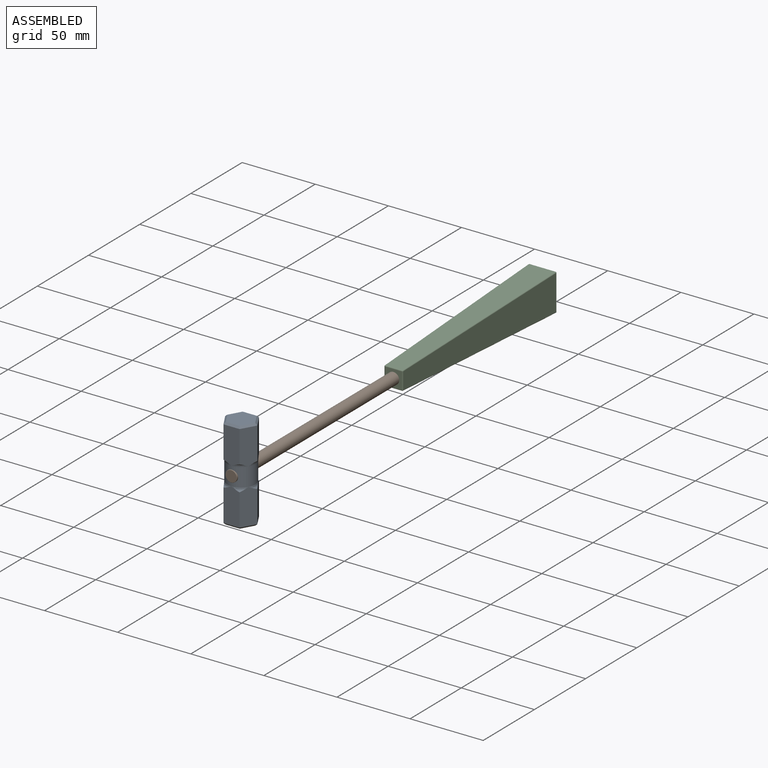
[diagram: assembled view]
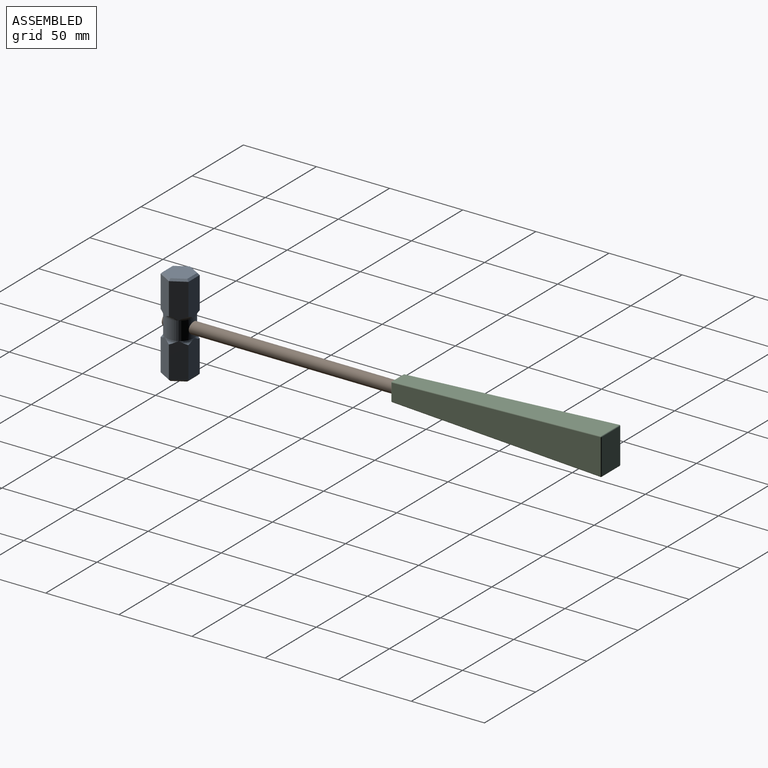
[diagram: assembled view, second angle]
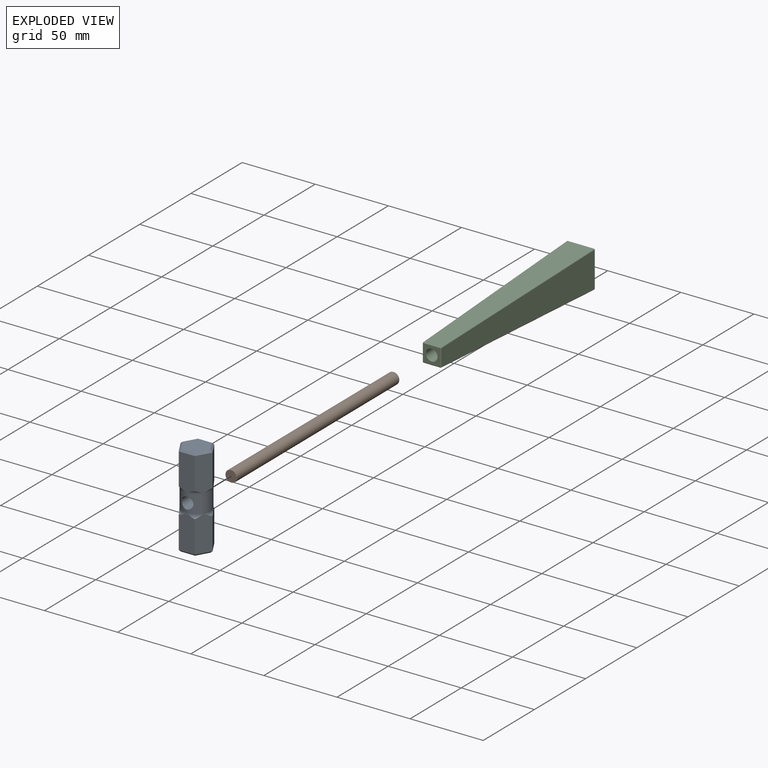
[diagram: exploded view]
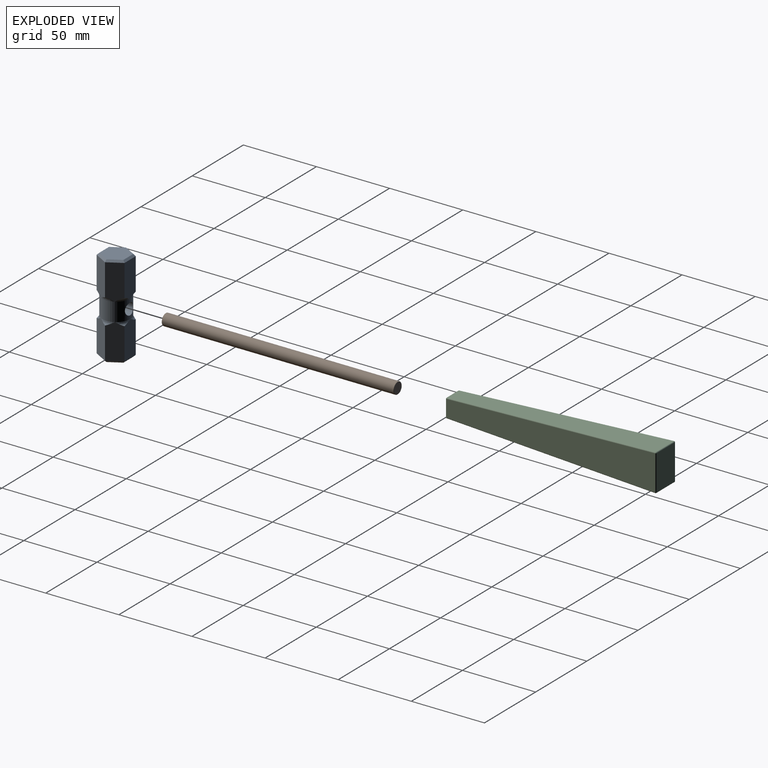
[diagram: exploded view, second angle]
ASSEMBLY  parts=3 mates=2
PART A: 40 faces, bbox 26.1x63.5x26.1 mm
  f0: plane 24.13x9.53mm, normal (0.5,0,0.87), area 251.3mm2, adj f1,f5,f11,f13,f18
  f1: plane 24.13x9.53mm, normal (-0.5,0,0.87), area 251.3mm2, adj f0,f2,f12,f17,f18
  f2: plane 24.13x11mm, normal (-1,0,0), area 251.3mm2, adj f1,f3,f10,f16,f17
  f3: plane 24.13x9.53mm, normal (-0.5,0,-0.87), area 251.3mm2, adj f2,f4,f8,f15,f16
  f4: plane 24.13x9.53mm, normal (0.5,0,-0.87), area 251.3mm2, adj f3,f5,f7,f14,f15
  f5: plane 24.13x11mm, normal (1,0,0), area 251.3mm2, adj f0,f4,f9,f13,f14
  f6: plane 19.06x16.51mm, normal (0,-1,0), area 236.1mm2, adj f7,f8,f9,f10,f11,f12
  f7: plane 9.53x6.23mm, normal (0.35,-0.71,-0.61), area 18.4mm2, adj f4,f6,f8,f9
  f8: plane 9.53x6.23mm, normal (-0.35,-0.71,-0.61), area 18.4mm2, adj f3,f6,f7,f10
  f9: plane 11x1.27mm, normal (0.71,-0.71,0), area 18.4mm2, adj f5,f6,f7,f11
  f10: plane 11x1.27mm, normal (-0.71,-0.71,0), area 18.4mm2, adj f2,f6,f8,f12
  f11: plane 9.53x6.23mm, normal (0.35,-0.71,0.61), area 18.4mm2, adj f0,f6,f9,f12
  f12: plane 9.53x6.23mm, normal (-0.35,-0.71,0.61), area 18.4mm2, adj f1,f6,f10,f11
  f13: torus R=12.06mm, axis (0,1,0), area 13.9mm2, adj f0,f5,f20
  f14: torus R=12.06mm, axis (0,1,0), area 13.9mm2, adj f4,f5,f20
  f15: torus R=12.06mm, axis (0,1,0), area 13.9mm2, adj f3,f4,f20
  f16: torus R=12.06mm, axis (0,1,0), area 13.9mm2, adj f2,f3,f20
  f17: torus R=12.06mm, axis (0,1,0), area 13.9mm2, adj f1,f2,f20
  f18: torus R=12.06mm, axis (0,1,0), area 13.9mm2, adj f0,f1,f20
  f19: cylinder r=3.97mm len=19.05mm, axis (1,0,0), area 453.7mm2, adj f20
  f20: cylinder r=9.53mm len=19.05mm, axis (0,1,0), area 658.8mm2, adj f13,f14,f15,f16,f17,f18,f19,f21
  f21: torus R=12.06mm, axis (0,1,0), area 13.9mm2, adj f20,f34,f39
  f22: torus R=12.06mm, axis (0,1,0), area 13.9mm2, adj f20,f34,f35
  f23: torus R=12.06mm, axis (0,1,0), area 13.9mm2, adj f20,f35,f36
  f24: torus R=12.06mm, axis (0,1,0), area 13.9mm2, adj f20,f36,f37
  f25: torus R=12.06mm, axis (0,1,0), area 13.9mm2, adj f20,f37,f38
  f26: torus R=12.06mm, axis (0,1,0), area 13.9mm2, adj f20,f38,f39
  f27: plane 19.06x16.51mm, normal (0,1,0), area 236.1mm2, adj f28,f29,f30,f31,f32,f33
  f28: plane 11x1.27mm, normal (0.71,0.71,0), area 18.4mm2, adj f27,f29,f33,f39
  f29: plane 9.53x6.23mm, normal (0.35,0.71,-0.61), area 18.4mm2, adj f27,f28,f30,f38
  f30: plane 9.53x6.23mm, normal (-0.35,0.71,-0.61), area 18.4mm2, adj f27,f29,f31,f37
  f31: plane 11x1.27mm, normal (-0.71,0.71,0), area 18.4mm2, adj f27,f30,f32,f36
  f32: plane 9.53x6.23mm, normal (-0.35,0.71,0.61), area 18.4mm2, adj f27,f31,f33,f35
  f33: plane 9.53x6.23mm, normal (0.35,0.71,0.61), area 18.4mm2, adj f27,f28,f32,f34
  f34: plane 24.13x9.53mm, normal (0.5,0,0.87), area 251.3mm2, adj f21,f22,f33,f35,f39
  f35: plane 24.13x9.53mm, normal (-0.5,0,0.87), area 251.3mm2, adj f22,f23,f32,f34,f36
  f36: plane 24.13x11mm, normal (-1,0,0), area 251.3mm2, adj f23,f24,f31,f35,f37
  f37: plane 24.13x9.53mm, normal (-0.5,0,-0.87), area 251.3mm2, adj f24,f25,f30,f36,f38
  f38: plane 24.13x9.53mm, normal (0.5,0,-0.87), area 251.3mm2, adj f25,f26,f29,f37,f39
  f39: plane 24.13x11mm, normal (1,0,0), area 251.3mm2, adj f21,f26,f28,f34,f38
PART B: 5 faces, bbox 8.6x158.8x8.6 mm
  f0: cylinder r=3.97mm len=158.24mm, axis (0,1,0), area 3946mm2, adj f3,f4
  f1: plane 7.43x7.43mm, normal (0,-1,0), area 43.4mm2, adj f4
  f2: plane 7.43x7.43mm, normal (0,1,0), area 43.4mm2, adj f3
  f3: torus R=3.71mm, axis (0,-1,0), area 9.7mm2, adj f0,f2
  f4: torus R=3.71mm, axis (0,-1,0), area 9.7mm2, adj f0,f1
PART C: 28 faces, bbox 25.3x146.1x19 mm
  f0: plane 11.48x11.46mm, normal (0,-1,0), area 82.9mm2, adj f9,f10,f19,f20,f26
  f1: plane 144.78x24.07mm, normal (0,-0.02,1), area 2574.6mm2, adj f11,f20,f21,f25
  f2: plane 144.78x24.07mm, normal (0,-0.02,-1), area 2574.6mm2, adj f6,f9,f13,f14
  f3: plane 24.07x17.75mm, normal (0,1,0), area 427.4mm2, adj f12,f13,f21,f22
  f4: plane 144.78x17.75mm, normal (-1,-0.04,0), area 2116.5mm2, adj f6,f10,f11,f12
  f5: plane 144.78x17.75mm, normal (1,-0.04,0), area 2116.5mm2, adj f14,f19,f22,f25
  f6: cylinder r=0.64mm len=144.8mm, axis (-0.04,1,-0.02), area 144.5mm2, adj f2,f4,f7,f8
  f7: sphere r=0.64mm, area 0.6mm2, adj f6,f9,f10
  f8: sphere r=0.64mm, area 0.7mm2, adj f6,f12,f13
  f9: cylinder r=0.64mm len=11.48mm, axis (-1,0,0), area 11.3mm2, adj f0,f2,f7,f15
  f10: cylinder r=0.64mm len=11.46mm, axis (0,0,1), area 11.1mm2, adj f0,f4,f7,f16
  f11: cylinder r=0.64mm len=144.8mm, axis (0.04,-1,-0.02), area 144.5mm2, adj f1,f4,f16,f17
  f12: cylinder r=0.64mm len=17.75mm, axis (0,0,1), area 18.2mm2, adj f3,f4,f8,f17
  f13: cylinder r=0.64mm len=24.07mm, axis (-1,0,0), area 24.3mm2, adj f2,f3,f8,f18
  f14: cylinder r=0.64mm len=144.8mm, axis (-0.04,-1,0.02), area 144.5mm2, adj f2,f5,f15,f18
  f15: sphere r=0.64mm, area 0.6mm2, adj f9,f14,f19
  f16: sphere r=0.64mm, area 0.6mm2, adj f10,f11,f20
  f17: sphere r=0.64mm, area 0.7mm2, adj f11,f12,f21
  f18: sphere r=0.64mm, area 0.7mm2, adj f13,f14,f22
  f19: cylinder r=0.64mm len=11.46mm, axis (0,0,-1), area 11.1mm2, adj f0,f5,f15,f23
  f20: cylinder r=0.64mm len=11.48mm, axis (1,0,0), area 11.3mm2, adj f0,f1,f16,f23
  f21: cylinder r=0.64mm len=24.07mm, axis (1,0,0), area 24.3mm2, adj f1,f3,f17,f24
  f22: cylinder r=0.64mm len=17.75mm, axis (0,0,-1), area 18.2mm2, adj f3,f5,f18,f24
  f23: sphere r=0.64mm, area 0.6mm2, adj f19,f20,f25
  f24: sphere r=0.64mm, area 0.7mm2, adj f21,f22,f25
  f25: cylinder r=0.64mm len=144.8mm, axis (0.04,1,0.02), area 144.5mm2, adj f1,f5,f23,f24
  f26: cylinder r=3.94mm len=31.75mm, axis (0,-1,0), area 785.4mm2, adj f0,f27
  f27: plane 7.87x7.87mm, normal (0,-1,0), area 48.7mm2, adj f26
PLACE A rot(axis=(0.58,0.58,0.58),120deg) t=(-21.67,-248.3,-43.05)mm
PLACE B rot(axis=(0,1,0),90deg) t=(-21.67,-99.45,-43.05)mm
PLACE C rot(axis=(0,1,0),90deg) t=(-21.67,46.34,-43.05)mm
MATE fastened C.f26 <-> B.f0  axis (0,-1,0) through (-21.67,-99.71,-43.05)mm
MATE fastened B.f0 <-> A.f19  axis (0,1,0) through (-21.67,-257.95,-43.05)mm
